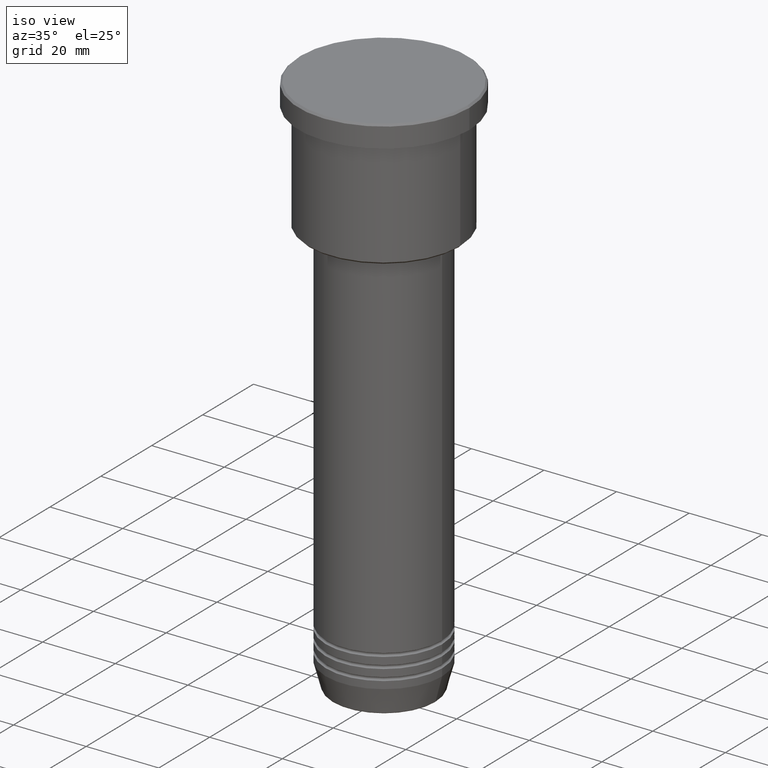
[diagram: clean part render]
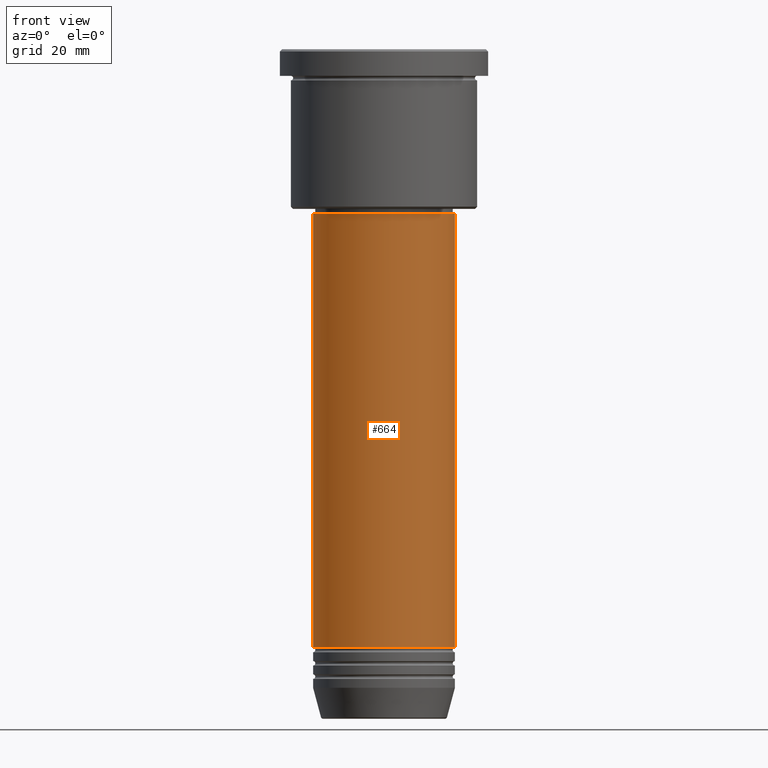
[diagram: tour spotlight — one face highlighted and labeled with its STEP entity id]
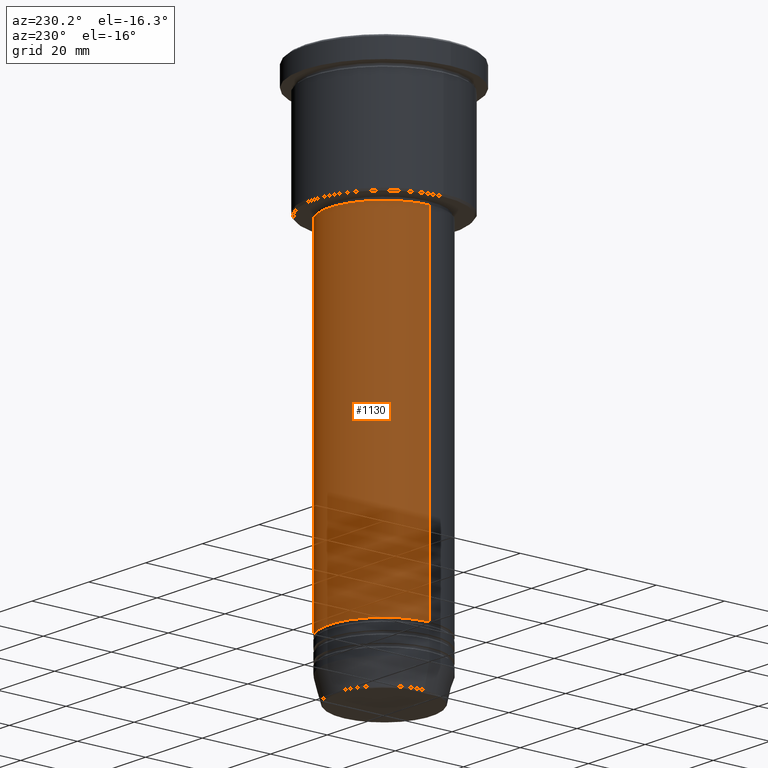
[diagram: tour spotlight — one face highlighted and labeled with its STEP entity id]
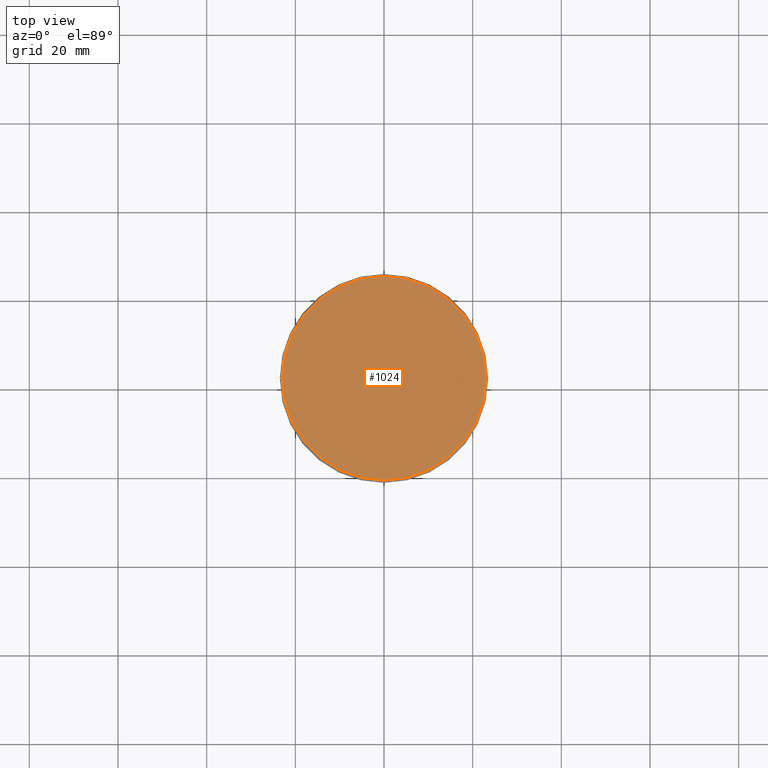
[diagram: tour spotlight — one face highlighted and labeled with its STEP entity id]
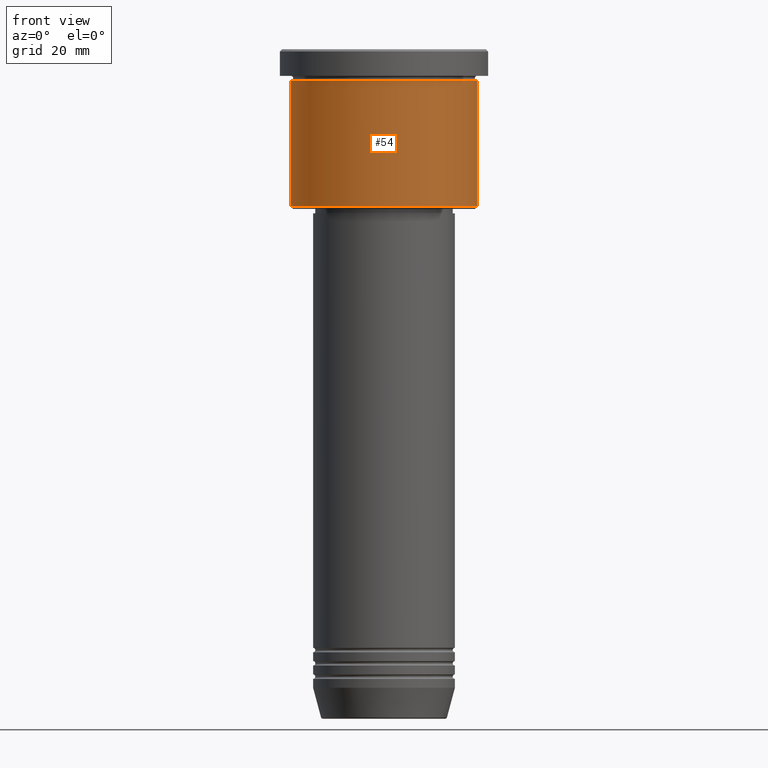
[diagram: tour spotlight — one face highlighted and labeled with its STEP entity id]
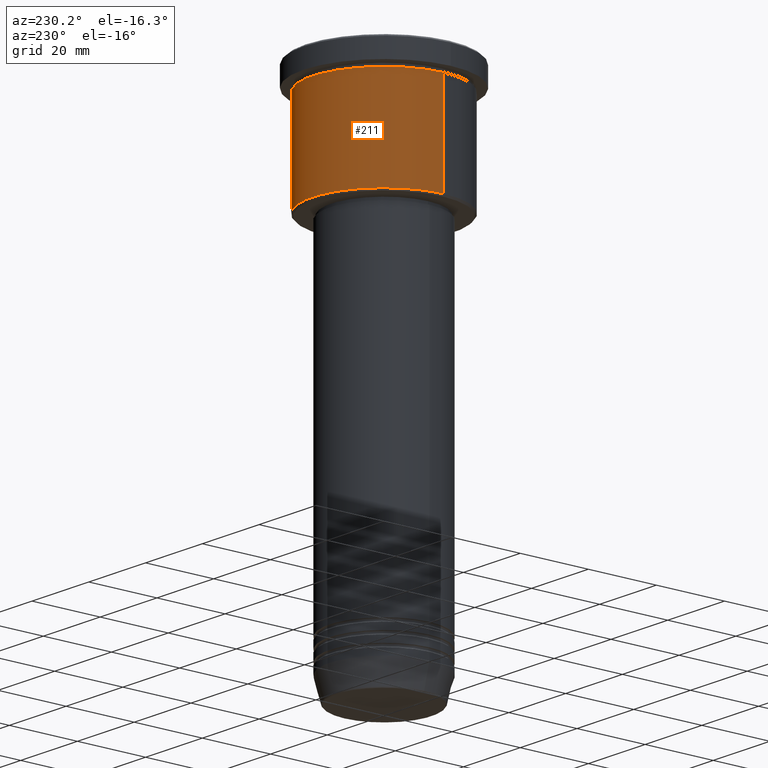
[diagram: tour spotlight — one face highlighted and labeled with its STEP entity id]
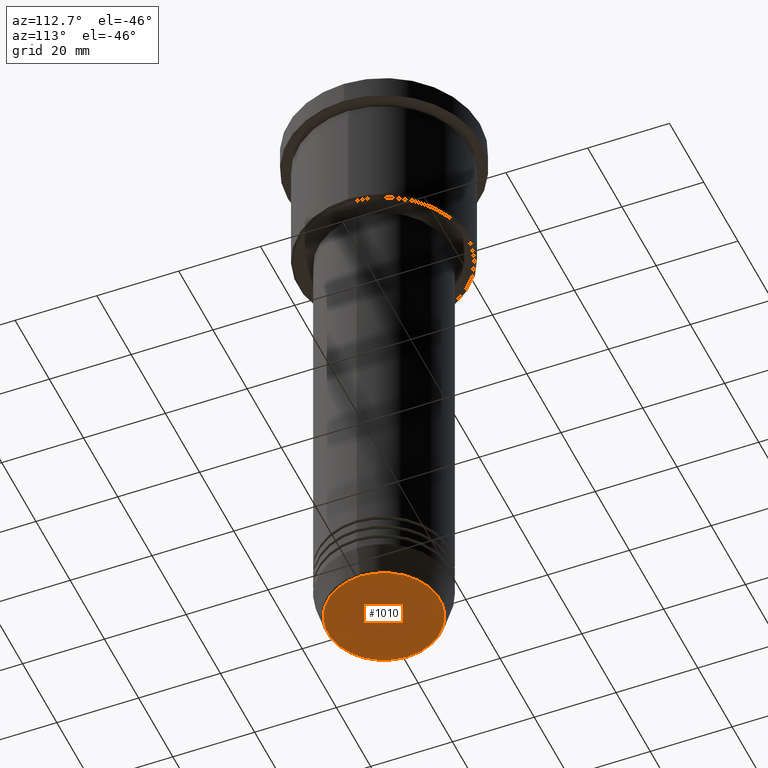
[diagram: tour spotlight — one face highlighted and labeled with its STEP entity id]
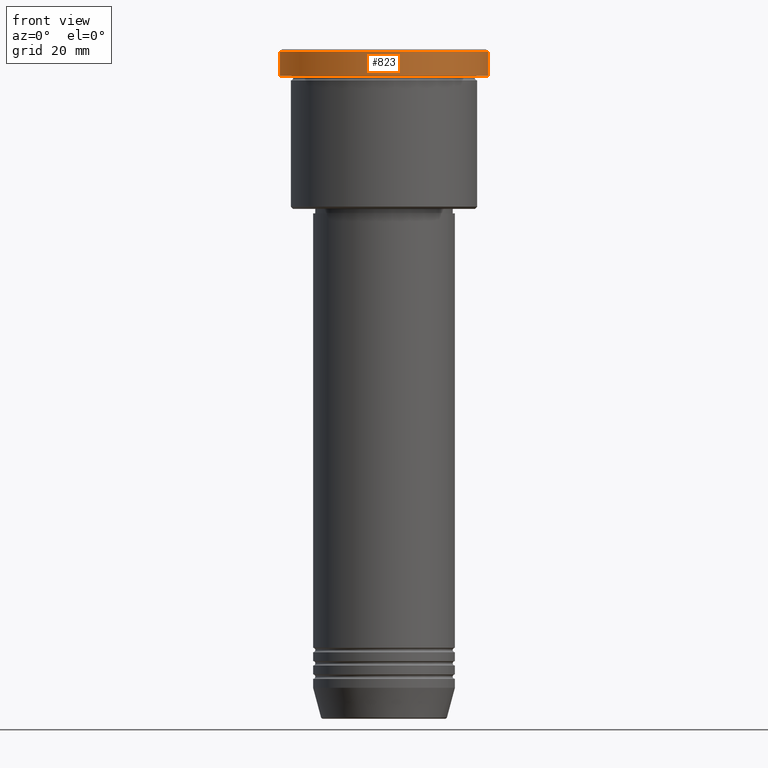
[diagram: tour spotlight — one face highlighted and labeled with its STEP entity id]
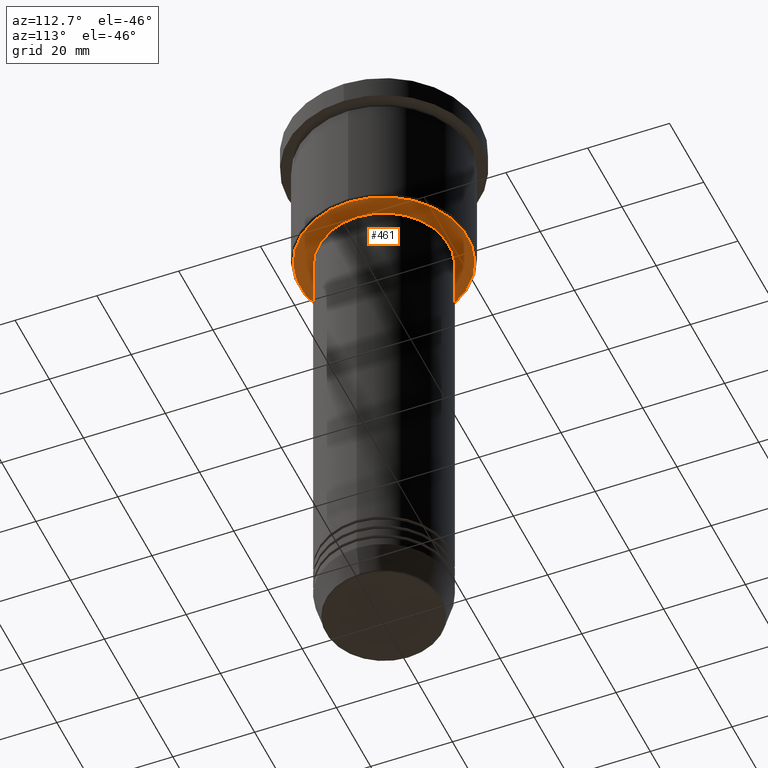
[diagram: tour spotlight — one face highlighted and labeled with its STEP entity id]
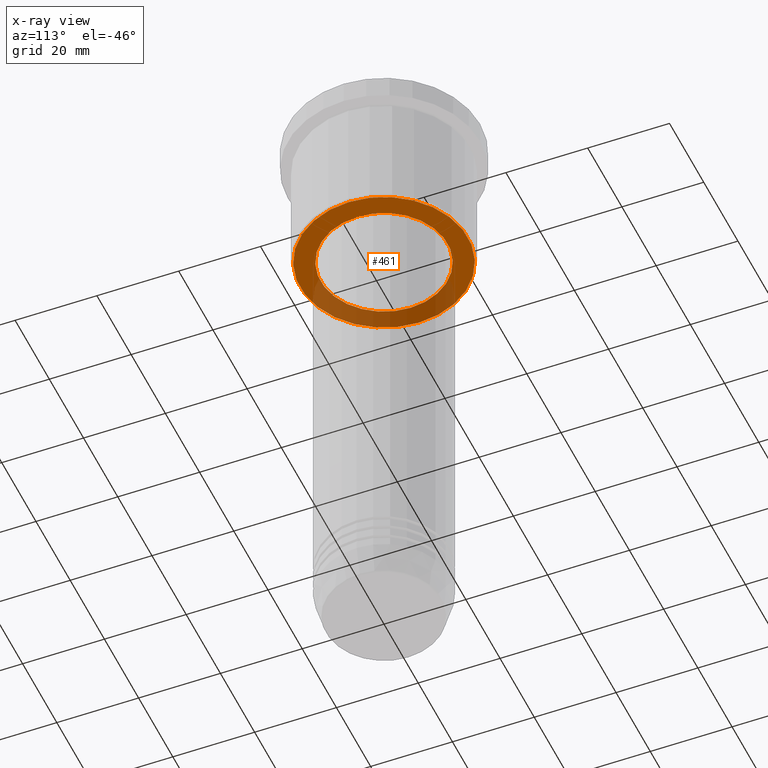
[diagram: x-ray of the same camera — body ghosted, this tour face saturated]
A machine part: a face-by-face anatomy tour. The part has 43 B-rep faces; the first image is the clean iso view, then the 8 largest visible faces are spotlighted one at a time (largest first), each with its STEP entity span.

Face 1 — front view, entity #664. In plain terms, the highlighted cylindrical surface (partial cylindrical patch) has radius 16 mm, axis along (-0, -0, 1).
Definition (entity closure, byte-faithful):
#1 = LINE ( 'NONE', #98, #139 ) ;
#94 = DIRECTION ( 'NONE',  ( -0.000000000000000000, -0.000000000000000000, 1.000000000000000000 ) ) ;
#98 = CARTESIAN_POINT ( 'NONE',  ( 16.00000000000000000, 0.000000000000000000, 0.000000000000000000 ) ) ;
#139 = VECTOR ( 'NONE', #94, 1000.000000000000000 ) ;
#268 = CARTESIAN_POINT ( 'NONE',  ( -16.00000000000000000, 1.959434878635765131E-15, -134.9999999999999716 ) ) ;
#286 = VERTEX_POINT ( 'NONE', #362 ) ;
#302 = EDGE_CURVE ( 'NONE', #520, #286, #921, .T. ) ;
#311 = DIRECTION ( 'NONE',  ( -0.000000000000000000, -0.000000000000000000, 1.000000000000000000 ) ) ;
#320 = CARTESIAN_POINT ( 'NONE',  ( 0.000000000000000000, 0.000000000000000000, 0.000000000000000000 ) ) ;
#349 = ORIENTED_EDGE ( 'NONE', *, *, #511, .F. ) ;
#362 = CARTESIAN_POINT ( 'NONE',  ( 16.00000000000000000, 0.000000000000000000, -37.00000000000001421 ) ) ;
#442 = DIRECTION ( 'NONE',  ( -0.000000000000000000, -0.000000000000000000, 1.000000000000000000 ) ) ;
#458 = DIRECTION ( 'NONE',  ( 1.000000000000000000, 0.000000000000000000, 0.000000000000000000 ) ) ;
#511 = EDGE_CURVE ( 'NONE', #619, #520, #881, .T. ) ;
#520 = VERTEX_POINT ( 'NONE', #699 ) ;
#532 = CARTESIAN_POINT ( 'NONE',  ( 16.00000000000000000, 0.000000000000000000, -134.9999999999999716 ) ) ;
#608 = CYLINDRICAL_SURFACE ( 'NONE', #1051, 16.00000000000000000 ) ;
#612 = EDGE_CURVE ( 'NONE', #619, #840, #1154, .T. ) ;
#619 = VERTEX_POINT ( 'NONE', #268 ) ;
#636 = AXIS2_PLACEMENT_3D ( 'NONE', #1165, #442, #802 ) ;
#664 = ADVANCED_FACE ( 'NONE', ( #1127 ), #608, .T. ) ;
#699 = CARTESIAN_POINT ( 'NONE',  ( -16.00000000000000000, 1.959434878635765131E-15, -37.00000000000001421 ) ) ;
#772 = DIRECTION ( 'NONE',  ( 1.000000000000000000, 0.000000000000000000, 0.000000000000000000 ) ) ;
#773 = ORIENTED_EDGE ( 'NONE', *, *, #930, .T. ) ;
#791 = CARTESIAN_POINT ( 'NONE',  ( -16.00000000000000000, 1.959434878635765131E-15, 0.000000000000000000 ) ) ;
#802 = DIRECTION ( 'NONE',  ( 1.000000000000000000, 0.000000000000000000, 0.000000000000000000 ) ) ;
#840 = VERTEX_POINT ( 'NONE', #532 ) ;
#881 = LINE ( 'NONE', #791, #1135 ) ;
#921 = CIRCLE ( 'NONE', #1078, 16.00000000000000000 ) ;
#929 = DIRECTION ( 'NONE',  ( -0.000000000000000000, -0.000000000000000000, 1.000000000000000000 ) ) ;
#930 = EDGE_CURVE ( 'NONE', #840, #286, #1, .T. ) ;
#979 = DIRECTION ( 'NONE',  ( -0.000000000000000000, -0.000000000000000000, 1.000000000000000000 ) ) ;
#1013 = ORIENTED_EDGE ( 'NONE', *, *, #302, .F. ) ;
#1051 = AXIS2_PLACEMENT_3D ( 'NONE', #320, #311, #772 ) ;
#1069 = EDGE_LOOP ( 'NONE', ( #349, #1075, #773, #1013 ) ) ;
#1075 = ORIENTED_EDGE ( 'NONE', *, *, #612, .T. ) ;
#1078 = AXIS2_PLACEMENT_3D ( 'NONE', #1098, #929, #458 ) ;
#1098 = CARTESIAN_POINT ( 'NONE',  ( 0.000000000000000000, 0.000000000000000000, -37.00000000000001421 ) ) ;
#1127 = FACE_OUTER_BOUND ( 'NONE', #1069, .T. ) ;
#1135 = VECTOR ( 'NONE', #979, 1000.000000000000000 ) ;
#1154 = CIRCLE ( 'NONE', #636, 16.00000000000000000 ) ;
#1165 = CARTESIAN_POINT ( 'NONE',  ( 0.000000000000000000, 0.000000000000000000, -134.9999999999999716 ) ) ;

Face 2 — auxiliary view, entity #1130. In plain terms, the highlighted cylindrical surface (partial cylindrical patch) has radius 16 mm, axis along (-0, -0, 1).
Definition (entity closure, byte-faithful):
#1 = LINE ( 'NONE', #98, #139 ) ;
#88 = DIRECTION ( 'NONE',  ( 1.000000000000000000, 0.000000000000000000, 0.000000000000000000 ) ) ;
#93 = CARTESIAN_POINT ( 'NONE',  ( 0.000000000000000000, 0.000000000000000000, -37.00000000000001421 ) ) ;
#94 = DIRECTION ( 'NONE',  ( -0.000000000000000000, -0.000000000000000000, 1.000000000000000000 ) ) ;
#98 = CARTESIAN_POINT ( 'NONE',  ( 16.00000000000000000, 0.000000000000000000, 0.000000000000000000 ) ) ;
#103 = CIRCLE ( 'NONE', #786, 16.00000000000000000 ) ;
#131 = EDGE_LOOP ( 'NONE', ( #146, #956, #728, #801 ) ) ;
#133 = CYLINDRICAL_SURFACE ( 'NONE', #804, 16.00000000000000000 ) ;
#139 = VECTOR ( 'NONE', #94, 1000.000000000000000 ) ;
#146 = ORIENTED_EDGE ( 'NONE', *, *, #932, .T. ) ;
#208 = DIRECTION ( 'NONE',  ( 1.000000000000000000, 0.000000000000000000, 0.000000000000000000 ) ) ;
#268 = CARTESIAN_POINT ( 'NONE',  ( -16.00000000000000000, 1.959434878635765131E-15, -134.9999999999999716 ) ) ;
#284 = EDGE_CURVE ( 'NONE', #286, #520, #103, .T. ) ;
#286 = VERTEX_POINT ( 'NONE', #362 ) ;
#362 = CARTESIAN_POINT ( 'NONE',  ( 16.00000000000000000, 0.000000000000000000, -37.00000000000001421 ) ) ;
#383 = CARTESIAN_POINT ( 'NONE',  ( 0.000000000000000000, 0.000000000000000000, -134.9999999999999716 ) ) ;
#411 = DIRECTION ( 'NONE',  ( -0.000000000000000000, -0.000000000000000000, 1.000000000000000000 ) ) ;
#446 = DIRECTION ( 'NONE',  ( -0.000000000000000000, -0.000000000000000000, 1.000000000000000000 ) ) ;
#494 = CARTESIAN_POINT ( 'NONE',  ( 0.000000000000000000, 0.000000000000000000, 0.000000000000000000 ) ) ;
#511 = EDGE_CURVE ( 'NONE', #619, #520, #881, .T. ) ;
#520 = VERTEX_POINT ( 'NONE', #699 ) ;
#532 = CARTESIAN_POINT ( 'NONE',  ( 16.00000000000000000, 0.000000000000000000, -134.9999999999999716 ) ) ;
#619 = VERTEX_POINT ( 'NONE', #268 ) ;
#699 = CARTESIAN_POINT ( 'NONE',  ( -16.00000000000000000, 1.959434878635765131E-15, -37.00000000000001421 ) ) ;
#728 = ORIENTED_EDGE ( 'NONE', *, *, #284, .F. ) ;
#734 = DIRECTION ( 'NONE',  ( -0.000000000000000000, -0.000000000000000000, 1.000000000000000000 ) ) ;
#786 = AXIS2_PLACEMENT_3D ( 'NONE', #93, #446, #88 ) ;
#791 = CARTESIAN_POINT ( 'NONE',  ( -16.00000000000000000, 1.959434878635765131E-15, 0.000000000000000000 ) ) ;
#801 = ORIENTED_EDGE ( 'NONE', *, *, #930, .F. ) ;
#803 = CIRCLE ( 'NONE', #1111, 16.00000000000000000 ) ;
#804 = AXIS2_PLACEMENT_3D ( 'NONE', #494, #411, #1034 ) ;
#840 = VERTEX_POINT ( 'NONE', #532 ) ;
#881 = LINE ( 'NONE', #791, #1135 ) ;
#930 = EDGE_CURVE ( 'NONE', #840, #286, #1, .T. ) ;
#932 = EDGE_CURVE ( 'NONE', #840, #619, #803, .T. ) ;
#956 = ORIENTED_EDGE ( 'NONE', *, *, #511, .T. ) ;
#979 = DIRECTION ( 'NONE',  ( -0.000000000000000000, -0.000000000000000000, 1.000000000000000000 ) ) ;
#1034 = DIRECTION ( 'NONE',  ( 1.000000000000000000, 0.000000000000000000, 0.000000000000000000 ) ) ;
#1046 = FACE_OUTER_BOUND ( 'NONE', #131, .T. ) ;
#1111 = AXIS2_PLACEMENT_3D ( 'NONE', #383, #734, #208 ) ;
#1130 = ADVANCED_FACE ( 'NONE', ( #1046 ), #133, .T. ) ;
#1135 = VECTOR ( 'NONE', #979, 1000.000000000000000 ) ;

Face 3 — top view, entity #1024. In plain terms, the highlighted planar face has unit normal (0, -0, 1).
Definition (entity closure, byte-faithful):
#129 = DIRECTION ( 'NONE',  ( -0.000000000000000000, -0.000000000000000000, 1.000000000000000000 ) ) ;
#142 = CIRCLE ( 'NONE', #980, 23.00000000000001066 ) ;
#180 = CARTESIAN_POINT ( 'NONE',  ( -23.00000000000001066, 0.000000000000000000, 0.000000000000000000 ) ) ;
#207 = EDGE_CURVE ( 'NONE', #856, #919, #142, .T. ) ;
#471 = PLANE ( 'NONE',  #1112 ) ;
#547 = DIRECTION ( 'NONE',  ( -0.000000000000000000, -0.000000000000000000, 1.000000000000000000 ) ) ;
#569 = DIRECTION ( 'NONE',  ( 1.000000000000000000, 0.000000000000000000, 0.000000000000000000 ) ) ;
#633 = DIRECTION ( 'NONE',  ( 1.000000000000000000, 0.000000000000000000, 0.000000000000000000 ) ) ;
#647 = CIRCLE ( 'NONE', #1171, 23.00000000000001066 ) ;
#676 = CARTESIAN_POINT ( 'NONE',  ( 0.000000000000000000, 0.000000000000000000, 0.000000000000000000 ) ) ;
#680 = DIRECTION ( 'NONE',  ( 1.000000000000000000, 0.000000000000000000, 0.000000000000000000 ) ) ;
#688 = EDGE_CURVE ( 'NONE', #919, #856, #647, .T. ) ;
#742 = EDGE_LOOP ( 'NONE', ( #1088, #869 ) ) ;
#810 = CARTESIAN_POINT ( 'NONE',  ( 23.00000000000001066, 2.847303808017596928E-15, 0.000000000000000000 ) ) ;
#820 = DIRECTION ( 'NONE',  ( 0.000000000000000000, -0.000000000000000000, 1.000000000000000000 ) ) ;
#856 = VERTEX_POINT ( 'NONE', #810 ) ;
#869 = ORIENTED_EDGE ( 'NONE', *, *, #207, .T. ) ;
#913 = CARTESIAN_POINT ( 'NONE',  ( 0.000000000000000000, 0.000000000000000000, 0.000000000000000000 ) ) ;
#919 = VERTEX_POINT ( 'NONE', #180 ) ;
#980 = AXIS2_PLACEMENT_3D ( 'NONE', #1120, #547, #633 ) ;
#1019 = FACE_OUTER_BOUND ( 'NONE', #742, .T. ) ;
#1024 = ADVANCED_FACE ( 'NONE', ( #1019 ), #471, .T. ) ;
#1088 = ORIENTED_EDGE ( 'NONE', *, *, #688, .T. ) ;
#1112 = AXIS2_PLACEMENT_3D ( 'NONE', #913, #820, #569 ) ;
#1120 = CARTESIAN_POINT ( 'NONE',  ( 0.000000000000000000, 0.000000000000000000, 0.000000000000000000 ) ) ;
#1171 = AXIS2_PLACEMENT_3D ( 'NONE', #676, #129, #680 ) ;

Face 4 — front view, entity #54. In plain terms, the highlighted cylindrical surface (partial cylindrical patch) has radius 21 mm, axis along (-0, -0, 1).
Definition (entity closure, byte-faithful):
#24 = AXIS2_PLACEMENT_3D ( 'NONE', #594, #959, #147 ) ;
#54 = ADVANCED_FACE ( 'NONE', ( #128 ), #306, .T. ) ;
#70 = CARTESIAN_POINT ( 'NONE',  ( 21.00000000000000000, 0.000000000000000000, -6.999999999999994671 ) ) ;
#128 = FACE_OUTER_BOUND ( 'NONE', #181, .T. ) ;
#140 = DIRECTION ( 'NONE',  ( 1.000000000000000000, 0.000000000000000000, 0.000000000000000000 ) ) ;
#143 = DIRECTION ( 'NONE',  ( 1.000000000000000000, 0.000000000000000000, 0.000000000000000000 ) ) ;
#147 = DIRECTION ( 'NONE',  ( -1.000000000000000000, 0.000000000000000000, 0.000000000000000000 ) ) ;
#158 = CARTESIAN_POINT ( 'NONE',  ( -21.00000000000000000, 2.571758278209441661E-15, 0.000000000000000000 ) ) ;
#181 = EDGE_LOOP ( 'NONE', ( #260, #513, #472, #1041 ) ) ;
#196 = CARTESIAN_POINT ( 'NONE',  ( 21.00000000000000000, 0.000000000000000000, 0.000000000000000000 ) ) ;
#197 = VERTEX_POINT ( 'NONE', #206 ) ;
#202 = CIRCLE ( 'NONE', #24, 21.00000000000000000 ) ;
#206 = CARTESIAN_POINT ( 'NONE',  ( -21.00000000000000000, 2.571758278209441661E-15, -6.999999999999994671 ) ) ;
#237 = CIRCLE ( 'NONE', #294, 21.00000000000000000 ) ;
#260 = ORIENTED_EDGE ( 'NONE', *, *, #497, .F. ) ;
#280 = VECTOR ( 'NONE', #656, 1000.000000000000000 ) ;
#294 = AXIS2_PLACEMENT_3D ( 'NONE', #770, #936, #140 ) ;
#306 = CYLINDRICAL_SURFACE ( 'NONE', #338, 21.00000000000000000 ) ;
#338 = AXIS2_PLACEMENT_3D ( 'NONE', #495, #763, #143 ) ;
#472 = ORIENTED_EDGE ( 'NONE', *, *, #1096, .T. ) ;
#483 = EDGE_CURVE ( 'NONE', #533, #567, #202, .T. ) ;
#495 = CARTESIAN_POINT ( 'NONE',  ( 0.000000000000000000, 0.000000000000000000, 0.000000000000000000 ) ) ;
#497 = EDGE_CURVE ( 'NONE', #533, #197, #620, .T. ) ;
#513 = ORIENTED_EDGE ( 'NONE', *, *, #483, .T. ) ;
#521 = DIRECTION ( 'NONE',  ( -0.000000000000000000, -0.000000000000000000, 1.000000000000000000 ) ) ;
#533 = VERTEX_POINT ( 'NONE', #1077 ) ;
#538 = VERTEX_POINT ( 'NONE', #70 ) ;
#567 = VERTEX_POINT ( 'NONE', #1160 ) ;
#594 = CARTESIAN_POINT ( 'NONE',  ( 0.000000000000000000, 0.000000000000000000, -35.50000000000000711 ) ) ;
#620 = LINE ( 'NONE', #158, #904 ) ;
#656 = DIRECTION ( 'NONE',  ( -0.000000000000000000, -0.000000000000000000, 1.000000000000000000 ) ) ;
#763 = DIRECTION ( 'NONE',  ( -0.000000000000000000, -0.000000000000000000, 1.000000000000000000 ) ) ;
#770 = CARTESIAN_POINT ( 'NONE',  ( 0.000000000000000000, 0.000000000000000000, -6.999999999999994671 ) ) ;
#904 = VECTOR ( 'NONE', #521, 1000.000000000000000 ) ;
#936 = DIRECTION ( 'NONE',  ( -0.000000000000000000, -0.000000000000000000, 1.000000000000000000 ) ) ;
#959 = DIRECTION ( 'NONE',  ( -0.000000000000000000, -0.000000000000000000, 1.000000000000000000 ) ) ;
#1014 = LINE ( 'NONE', #196, #280 ) ;
#1041 = ORIENTED_EDGE ( 'NONE', *, *, #1147, .F. ) ;
#1077 = CARTESIAN_POINT ( 'NONE',  ( -21.00000000000000000, 2.571758278209441661E-15, -35.50000000000000711 ) ) ;
#1096 = EDGE_CURVE ( 'NONE', #567, #538, #1014, .T. ) ;
#1147 = EDGE_CURVE ( 'NONE', #197, #538, #237, .T. ) ;
#1160 = CARTESIAN_POINT ( 'NONE',  ( 21.00000000000000000, 0.000000000000000000, -35.50000000000000711 ) ) ;

Face 5 — auxiliary view, entity #211. In plain terms, the highlighted cylindrical surface (partial cylindrical patch) has radius 21 mm, axis along (-0, -0, 1).
Definition (entity closure, byte-faithful):
#19 = ORIENTED_EDGE ( 'NONE', *, *, #325, .F. ) ;
#28 = ORIENTED_EDGE ( 'NONE', *, *, #497, .T. ) ;
#70 = CARTESIAN_POINT ( 'NONE',  ( 21.00000000000000000, 0.000000000000000000, -6.999999999999994671 ) ) ;
#95 = ORIENTED_EDGE ( 'NONE', *, *, #463, .T. ) ;
#99 = EDGE_LOOP ( 'NONE', ( #95, #28, #19, #412 ) ) ;
#111 = DIRECTION ( 'NONE',  ( 1.000000000000000000, 0.000000000000000000, 0.000000000000000000 ) ) ;
#116 = CARTESIAN_POINT ( 'NONE',  ( 0.000000000000000000, 0.000000000000000000, 0.000000000000000000 ) ) ;
#158 = CARTESIAN_POINT ( 'NONE',  ( -21.00000000000000000, 2.571758278209441661E-15, 0.000000000000000000 ) ) ;
#196 = CARTESIAN_POINT ( 'NONE',  ( 21.00000000000000000, 0.000000000000000000, 0.000000000000000000 ) ) ;
#197 = VERTEX_POINT ( 'NONE', #206 ) ;
#206 = CARTESIAN_POINT ( 'NONE',  ( -21.00000000000000000, 2.571758278209441661E-15, -6.999999999999994671 ) ) ;
#210 = DIRECTION ( 'NONE',  ( -0.000000000000000000, -0.000000000000000000, 1.000000000000000000 ) ) ;
#211 = ADVANCED_FACE ( 'NONE', ( #814 ), #276, .T. ) ;
#276 = CYLINDRICAL_SURFACE ( 'NONE', #692, 21.00000000000000000 ) ;
#280 = VECTOR ( 'NONE', #656, 1000.000000000000000 ) ;
#325 = EDGE_CURVE ( 'NONE', #538, #197, #1056, .T. ) ;
#360 = AXIS2_PLACEMENT_3D ( 'NONE', #655, #1023, #1183 ) ;
#390 = CIRCLE ( 'NONE', #673, 21.00000000000000000 ) ;
#412 = ORIENTED_EDGE ( 'NONE', *, *, #1096, .F. ) ;
#463 = EDGE_CURVE ( 'NONE', #567, #533, #390, .T. ) ;
#497 = EDGE_CURVE ( 'NONE', #533, #197, #620, .T. ) ;
#521 = DIRECTION ( 'NONE',  ( -0.000000000000000000, -0.000000000000000000, 1.000000000000000000 ) ) ;
#533 = VERTEX_POINT ( 'NONE', #1077 ) ;
#538 = VERTEX_POINT ( 'NONE', #70 ) ;
#567 = VERTEX_POINT ( 'NONE', #1160 ) ;
#590 = DIRECTION ( 'NONE',  ( -1.000000000000000000, 0.000000000000000000, 0.000000000000000000 ) ) ;
#620 = LINE ( 'NONE', #158, #904 ) ;
#655 = CARTESIAN_POINT ( 'NONE',  ( 0.000000000000000000, 0.000000000000000000, -6.999999999999994671 ) ) ;
#656 = DIRECTION ( 'NONE',  ( -0.000000000000000000, -0.000000000000000000, 1.000000000000000000 ) ) ;
#673 = AXIS2_PLACEMENT_3D ( 'NONE', #847, #1136, #590 ) ;
#692 = AXIS2_PLACEMENT_3D ( 'NONE', #116, #210, #111 ) ;
#814 = FACE_OUTER_BOUND ( 'NONE', #99, .T. ) ;
#847 = CARTESIAN_POINT ( 'NONE',  ( 0.000000000000000000, 0.000000000000000000, -35.50000000000000711 ) ) ;
#904 = VECTOR ( 'NONE', #521, 1000.000000000000000 ) ;
#1014 = LINE ( 'NONE', #196, #280 ) ;
#1023 = DIRECTION ( 'NONE',  ( -0.000000000000000000, -0.000000000000000000, 1.000000000000000000 ) ) ;
#1056 = CIRCLE ( 'NONE', #360, 21.00000000000000000 ) ;
#1077 = CARTESIAN_POINT ( 'NONE',  ( -21.00000000000000000, 2.571758278209441661E-15, -35.50000000000000711 ) ) ;
#1096 = EDGE_CURVE ( 'NONE', #567, #538, #1014, .T. ) ;
#1136 = DIRECTION ( 'NONE',  ( -0.000000000000000000, -0.000000000000000000, 1.000000000000000000 ) ) ;
#1160 = CARTESIAN_POINT ( 'NONE',  ( 21.00000000000000000, 0.000000000000000000, -35.50000000000000711 ) ) ;
#1183 = DIRECTION ( 'NONE',  ( 1.000000000000000000, 0.000000000000000000, 0.000000000000000000 ) ) ;

Face 6 — auxiliary view, entity #1010. In plain terms, the highlighted planar face has unit normal (0, -0, 1).
Definition (entity closure, byte-faithful):
#203 = CARTESIAN_POINT ( 'NONE',  ( 0.000000000000000000, 0.000000000000000000, -151.0000000000000284 ) ) ;
#244 = DIRECTION ( 'NONE',  ( 0.000000000000000000, 0.000000000000000000, -1.000000000000000000 ) ) ;
#285 = FACE_OUTER_BOUND ( 'NONE', #431, .T. ) ;
#313 = CARTESIAN_POINT ( 'NONE',  ( 0.000000000000000000, 0.000000000000000000, -151.0000000000000284 ) ) ;
#340 = CIRCLE ( 'NONE', #429, 13.74069215899266005 ) ;
#385 = EDGE_CURVE ( 'NONE', #827, #658, #340, .T. ) ;
#406 = CARTESIAN_POINT ( 'NONE',  ( 0.000000000000000000, 0.000000000000000000, -151.0000000000000284 ) ) ;
#429 = AXIS2_PLACEMENT_3D ( 'NONE', #406, #244, #943 ) ;
#431 = EDGE_LOOP ( 'NONE', ( #587, #851 ) ) ;
#433 = EDGE_CURVE ( 'NONE', #658, #827, #958, .T. ) ;
#542 = CARTESIAN_POINT ( 'NONE',  ( -13.74069215899266005, 1.712322416342416380E-15, -151.0000000000000284 ) ) ;
#587 = ORIENTED_EDGE ( 'NONE', *, *, #433, .T. ) ;
#658 = VERTEX_POINT ( 'NONE', #759 ) ;
#672 = DIRECTION ( 'NONE',  ( 0.000000000000000000, 0.000000000000000000, -1.000000000000000000 ) ) ;
#740 = PLANE ( 'NONE',  #1017 ) ;
#743 = DIRECTION ( 'NONE',  ( 0.000000000000000000, -0.000000000000000000, 1.000000000000000000 ) ) ;
#748 = AXIS2_PLACEMENT_3D ( 'NONE', #313, #672, #774 ) ;
#751 = DIRECTION ( 'NONE',  ( 1.000000000000000000, 0.000000000000000000, 0.000000000000000000 ) ) ;
#759 = CARTESIAN_POINT ( 'NONE',  ( 13.74069215899266005, 0.000000000000000000, -151.0000000000000284 ) ) ;
#774 = DIRECTION ( 'NONE',  ( 1.000000000000000000, 0.000000000000000000, 0.000000000000000000 ) ) ;
#827 = VERTEX_POINT ( 'NONE', #542 ) ;
#851 = ORIENTED_EDGE ( 'NONE', *, *, #385, .T. ) ;
#943 = DIRECTION ( 'NONE',  ( 1.000000000000000000, 0.000000000000000000, 0.000000000000000000 ) ) ;
#958 = CIRCLE ( 'NONE', #748, 13.74069215899266005 ) ;
#1010 = ADVANCED_FACE ( 'NONE', ( #285 ), #740, .F. ) ;
#1017 = AXIS2_PLACEMENT_3D ( 'NONE', #203, #743, #751 ) ;

Face 7 — front view, entity #823. In plain terms, the highlighted cylindrical surface (partial cylindrical patch) has radius 23.5 mm, axis along (-0, -0, 1).
Definition (entity closure, byte-faithful):
#2 = VERTEX_POINT ( 'NONE', #570 ) ;
#10 = AXIS2_PLACEMENT_3D ( 'NONE', #1146, #504, #40 ) ;
#15 = VERTEX_POINT ( 'NONE', #573 ) ;
#40 = DIRECTION ( 'NONE',  ( 1.000000000000000000, 0.000000000000000000, 0.000000000000000000 ) ) ;
#69 = ORIENTED_EDGE ( 'NONE', *, *, #444, .T. ) ;
#107 = EDGE_CURVE ( 'NONE', #1039, #151, #1157, .T. ) ;
#138 = EDGE_CURVE ( 'NONE', #15, #2, #794, .T. ) ;
#151 = VERTEX_POINT ( 'NONE', #510 ) ;
#175 = DIRECTION ( 'NONE',  ( -0.000000000000000000, -0.000000000000000000, 1.000000000000000000 ) ) ;
#192 = CARTESIAN_POINT ( 'NONE',  ( 23.50000000000000000, 0.000000000000000000, -5.999999999999994671 ) ) ;
#293 = AXIS2_PLACEMENT_3D ( 'NONE', #800, #175, #1179 ) ;
#334 = DIRECTION ( 'NONE',  ( 1.000000000000000000, 0.000000000000000000, 0.000000000000000000 ) ) ;
#373 = VECTOR ( 'NONE', #867, 1000.000000000000000 ) ;
#376 = EDGE_CURVE ( 'NONE', #151, #2, #598, .T. ) ;
#430 = CYLINDRICAL_SURFACE ( 'NONE', #293, 23.50000000000000000 ) ;
#444 = EDGE_CURVE ( 'NONE', #15, #1039, #736, .T. ) ;
#490 = ORIENTED_EDGE ( 'NONE', *, *, #138, .F. ) ;
#504 = DIRECTION ( 'NONE',  ( 0.000000000000000000, 0.000000000000000000, -1.000000000000000000 ) ) ;
#510 = CARTESIAN_POINT ( 'NONE',  ( 23.50000000000000000, 0.000000000000000000, -0.5000000000000143219 ) ) ;
#570 = CARTESIAN_POINT ( 'NONE',  ( -23.50000000000000000, 2.877919977996280320E-15, -0.5000000000000143219 ) ) ;
#573 = CARTESIAN_POINT ( 'NONE',  ( -23.50000000000000000, 2.877919977996280320E-15, -5.999999999999994671 ) ) ;
#598 = CIRCLE ( 'NONE', #10, 23.50000000000000000 ) ;
#634 = FACE_OUTER_BOUND ( 'NONE', #1053, .T. ) ;
#643 = ORIENTED_EDGE ( 'NONE', *, *, #376, .T. ) ;
#687 = ORIENTED_EDGE ( 'NONE', *, *, #107, .T. ) ;
#693 = AXIS2_PLACEMENT_3D ( 'NONE', #864, #1140, #334 ) ;
#702 = DIRECTION ( 'NONE',  ( -0.000000000000000000, -0.000000000000000000, 1.000000000000000000 ) ) ;
#708 = CARTESIAN_POINT ( 'NONE',  ( 23.50000000000000000, 0.000000000000000000, 0.000000000000000000 ) ) ;
#736 = CIRCLE ( 'NONE', #693, 23.50000000000000000 ) ;
#794 = LINE ( 'NONE', #1162, #903 ) ;
#800 = CARTESIAN_POINT ( 'NONE',  ( 0.000000000000000000, 0.000000000000000000, 0.000000000000000000 ) ) ;
#823 = ADVANCED_FACE ( 'NONE', ( #634 ), #430, .T. ) ;
#864 = CARTESIAN_POINT ( 'NONE',  ( 0.000000000000000000, 0.000000000000000000, -5.999999999999994671 ) ) ;
#867 = DIRECTION ( 'NONE',  ( -0.000000000000000000, -0.000000000000000000, 1.000000000000000000 ) ) ;
#903 = VECTOR ( 'NONE', #702, 1000.000000000000000 ) ;
#1039 = VERTEX_POINT ( 'NONE', #192 ) ;
#1053 = EDGE_LOOP ( 'NONE', ( #490, #69, #687, #643 ) ) ;
#1140 = DIRECTION ( 'NONE',  ( -0.000000000000000000, -0.000000000000000000, 1.000000000000000000 ) ) ;
#1146 = CARTESIAN_POINT ( 'NONE',  ( 0.000000000000000000, 0.000000000000000000, -0.5000000000000143219 ) ) ;
#1157 = LINE ( 'NONE', #708, #373 ) ;
#1162 = CARTESIAN_POINT ( 'NONE',  ( -23.50000000000000000, 2.877919977996280320E-15, 0.000000000000000000 ) ) ;
#1179 = DIRECTION ( 'NONE',  ( 1.000000000000000000, 0.000000000000000000, 0.000000000000000000 ) ) ;

Face 8 — auxiliary view, entity #461. An x-ray twin of the same camera follows (body ghosted, this face saturated) — the face is partly hidden behind the body. In plain terms, the highlighted planar face has unit normal (0, 0, -1).
Definition (entity closure, byte-faithful):
#31 = VERTEX_POINT ( 'NONE', #933 ) ;
#43 = VERTEX_POINT ( 'NONE', #403 ) ;
#76 = VERTEX_POINT ( 'NONE', #799 ) ;
#83 = CIRCLE ( 'NONE', #425, 15.50000000000000000 ) ;
#123 = ORIENTED_EDGE ( 'NONE', *, *, #845, .T. ) ;
#174 = CARTESIAN_POINT ( 'NONE',  ( 0.000000000000000000, 0.000000000000000000, -36.00000000000000711 ) ) ;
#212 = EDGE_CURVE ( 'NONE', #1151, #76, #295, .T. ) ;
#214 = EDGE_LOOP ( 'NONE', ( #1139, #822 ) ) ;
#219 = AXIS2_PLACEMENT_3D ( 'NONE', #1057, #604, #948 ) ;
#230 = PLANE ( 'NONE',  #219 ) ;
#251 = EDGE_CURVE ( 'NONE', #76, #1151, #486, .T. ) ;
#264 = DIRECTION ( 'NONE',  ( -1.000000000000000000, 0.000000000000000000, 0.000000000000000000 ) ) ;
#277 = CARTESIAN_POINT ( 'NONE',  ( 0.000000000000000000, 0.000000000000000000, -36.00000000000000711 ) ) ;
#295 = CIRCLE ( 'NONE', #825, 20.50000000000000355 ) ;
#358 = DIRECTION ( 'NONE',  ( 1.000000000000000000, 0.000000000000000000, 0.000000000000000000 ) ) ;
#359 = ORIENTED_EDGE ( 'NONE', *, *, #879, .T. ) ;
#363 = DIRECTION ( 'NONE',  ( 1.000000000000000000, 0.000000000000000000, 0.000000000000000000 ) ) ;
#386 = AXIS2_PLACEMENT_3D ( 'NONE', #277, #703, #363 ) ;
#403 = CARTESIAN_POINT ( 'NONE',  ( -15.50000000000000000, 1.898202538678397557E-15, -36.00000000000000711 ) ) ;
#425 = AXIS2_PLACEMENT_3D ( 'NONE', #908, #550, #358 ) ;
#461 = ADVANCED_FACE ( 'NONE', ( #585, #514 ), #230, .T. ) ;
#486 = CIRCLE ( 'NONE', #841, 20.50000000000000355 ) ;
#509 = CARTESIAN_POINT ( 'NONE',  ( 20.50000000000000355, 0.000000000000000000, -36.00000000000000711 ) ) ;
#514 = FACE_BOUND ( 'NONE', #1008, .T. ) ;
#550 = DIRECTION ( 'NONE',  ( -0.000000000000000000, -0.000000000000000000, 1.000000000000000000 ) ) ;
#585 = FACE_OUTER_BOUND ( 'NONE', #214, .T. ) ;
#604 = DIRECTION ( 'NONE',  ( 0.000000000000000000, 0.000000000000000000, -1.000000000000000000 ) ) ;
#703 = DIRECTION ( 'NONE',  ( -0.000000000000000000, -0.000000000000000000, 1.000000000000000000 ) ) ;
#715 = DIRECTION ( 'NONE',  ( 0.000000000000000000, 0.000000000000000000, -1.000000000000000000 ) ) ;
#720 = DIRECTION ( 'NONE',  ( -1.000000000000000000, 0.000000000000000000, 0.000000000000000000 ) ) ;
#730 = CIRCLE ( 'NONE', #386, 15.50000000000000000 ) ;
#799 = CARTESIAN_POINT ( 'NONE',  ( -20.50000000000000355, 2.541142108230758269E-15, -36.00000000000000711 ) ) ;
#807 = CARTESIAN_POINT ( 'NONE',  ( 0.000000000000000000, 0.000000000000000000, -36.00000000000000711 ) ) ;
#822 = ORIENTED_EDGE ( 'NONE', *, *, #251, .T. ) ;
#825 = AXIS2_PLACEMENT_3D ( 'NONE', #174, #1178, #720 ) ;
#841 = AXIS2_PLACEMENT_3D ( 'NONE', #807, #715, #264 ) ;
#845 = EDGE_CURVE ( 'NONE', #43, #31, #83, .T. ) ;
#879 = EDGE_CURVE ( 'NONE', #31, #43, #730, .T. ) ;
#908 = CARTESIAN_POINT ( 'NONE',  ( 0.000000000000000000, 0.000000000000000000, -36.00000000000000711 ) ) ;
#933 = CARTESIAN_POINT ( 'NONE',  ( 15.50000000000000000, 0.000000000000000000, -36.00000000000000711 ) ) ;
#948 = DIRECTION ( 'NONE',  ( -1.000000000000000000, 0.000000000000000000, -0.000000000000000000 ) ) ;
#1008 = EDGE_LOOP ( 'NONE', ( #359, #123 ) ) ;
#1057 = CARTESIAN_POINT ( 'NONE',  ( 0.000000000000000000, 21.00000000000000000, -36.00000000000000711 ) ) ;
#1139 = ORIENTED_EDGE ( 'NONE', *, *, #212, .T. ) ;
#1151 = VERTEX_POINT ( 'NONE', #509 ) ;
#1178 = DIRECTION ( 'NONE',  ( 0.000000000000000000, 0.000000000000000000, -1.000000000000000000 ) ) ;